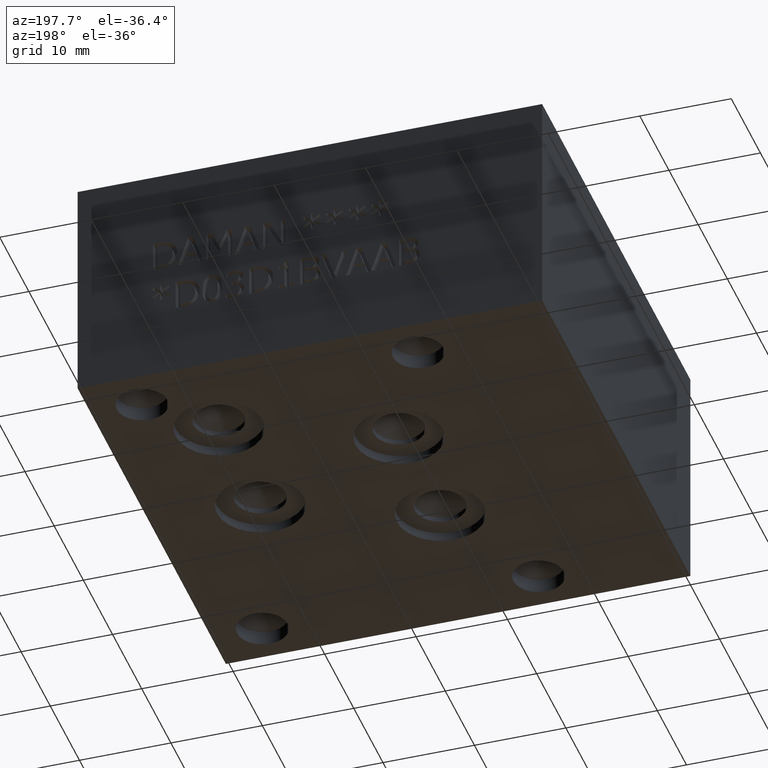
[diagram: clean part render]
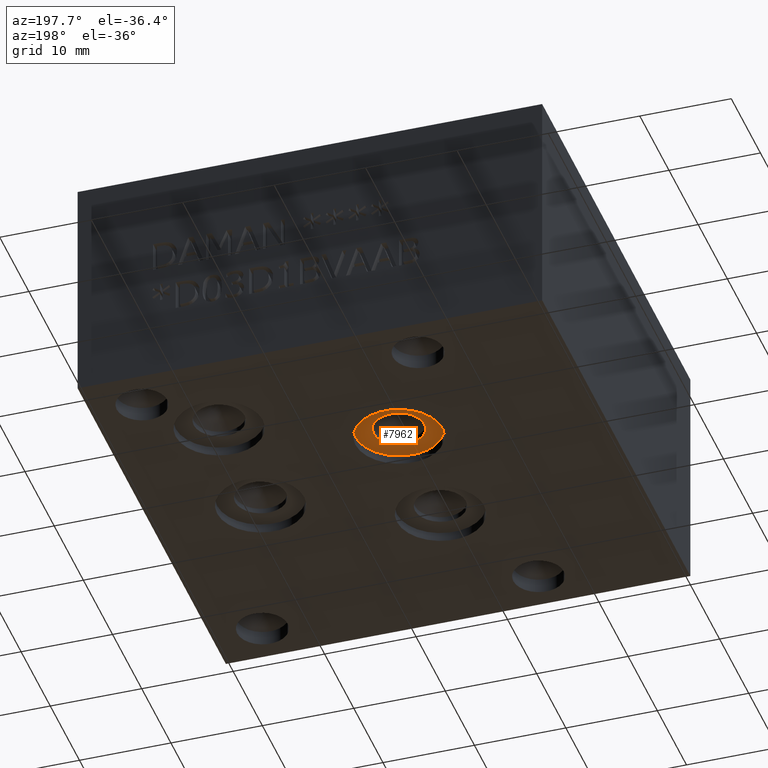
[diagram: same view with one face highlighted and labeled with its STEP entity id]
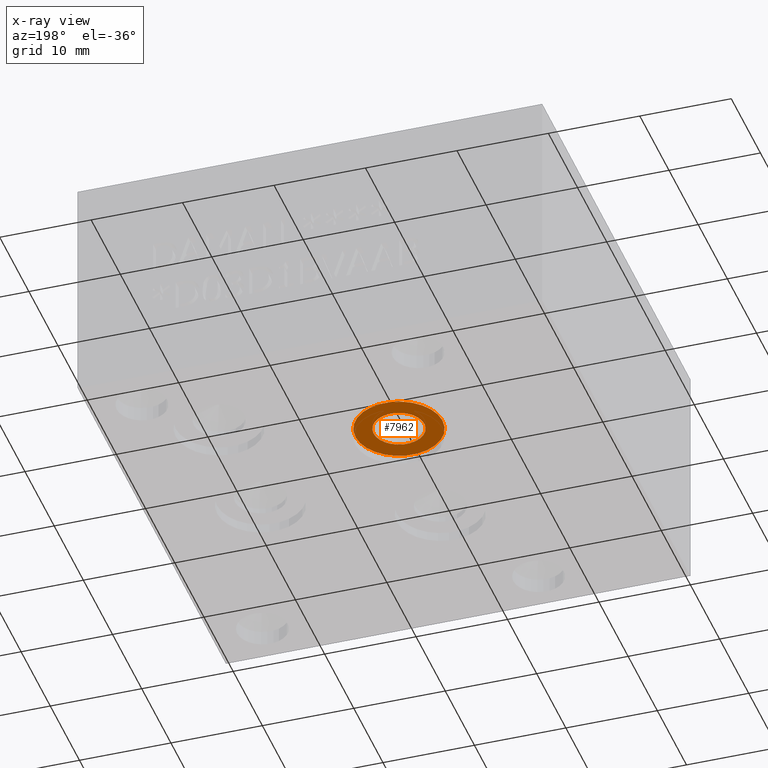
[diagram: x-ray of the same camera — body ghosted, the highlighted face saturated]
A machine part, auxiliary view. The second image highlights one B-rep face of the part: STEP entity #7962.
The next image is the same camera in x-ray: the body ghosted, the highlighted face saturated — about 0% of this face is hidden behind the body in this view.
In plain terms, the highlighted planar face has unit normal (0, 0, -1).
Its self-contained STEP definition (entity closure, byte-faithful):
#42=CIRCLE('',#8305,4.7625);
#43=CIRCLE('',#8306,4.7625);
#44=CIRCLE('',#8308,2.7813);
#220=FACE_BOUND('',#1280,.T.);
#841=FACE_OUTER_BOUND('',#1279,.T.);
#1279=EDGE_LOOP('',(#6678,#6679));
#1280=EDGE_LOOP('',(#6680));
#3611=VERTEX_POINT('',#13148);
#3612=VERTEX_POINT('',#13150);
#3613=VERTEX_POINT('',#13154);
#4671=EDGE_CURVE('',#3612,#3611,#42,.T.);
#4672=EDGE_CURVE('',#3611,#3612,#43,.T.);
#4673=EDGE_CURVE('',#3613,#3613,#44,.T.);
#6678=ORIENTED_EDGE('',*,*,#4671,.T.);
#6679=ORIENTED_EDGE('',*,*,#4672,.T.);
#6680=ORIENTED_EDGE('',*,*,#4673,.F.);
#7285=PLANE('',#8307);
#7962=ADVANCED_FACE('',(#841,#220),#7285,.T.);
#8305=AXIS2_PLACEMENT_3D('',#13151,#9756,#9757);
#8306=AXIS2_PLACEMENT_3D('',#13152,#9758,#9759);
#8307=AXIS2_PLACEMENT_3D('',#13153,#9760,#9761);
#8308=AXIS2_PLACEMENT_3D('',#13155,#9762,#9763);
#9756=DIRECTION('center_axis',(0.,0.,-1.));
#9757=DIRECTION('ref_axis',(1.,0.,0.));
#9758=DIRECTION('center_axis',(0.,0.,-1.));
#9759=DIRECTION('ref_axis',(1.,0.,0.));
#9760=DIRECTION('center_axis',(0.,0.,-1.));
#9761=DIRECTION('ref_axis',(1.,0.,0.));
#9762=DIRECTION('center_axis',(0.,0.,-1.));
#9763=DIRECTION('ref_axis',(1.,0.,0.));
#13148=CARTESIAN_POINT('',(16.7259,32.5374,1.016));
#13150=CARTESIAN_POINT('',(26.2509,32.5374,1.016));
#13151=CARTESIAN_POINT('Origin',(21.4884,32.5374,1.016));
#13152=CARTESIAN_POINT('Origin',(21.4884,32.5374,1.016));
#13153=CARTESIAN_POINT('Origin',(21.4884,32.5374,1.016));
#13154=CARTESIAN_POINT('',(18.7071,32.5374,1.016));
#13155=CARTESIAN_POINT('Origin',(21.4884,32.5374,1.016));